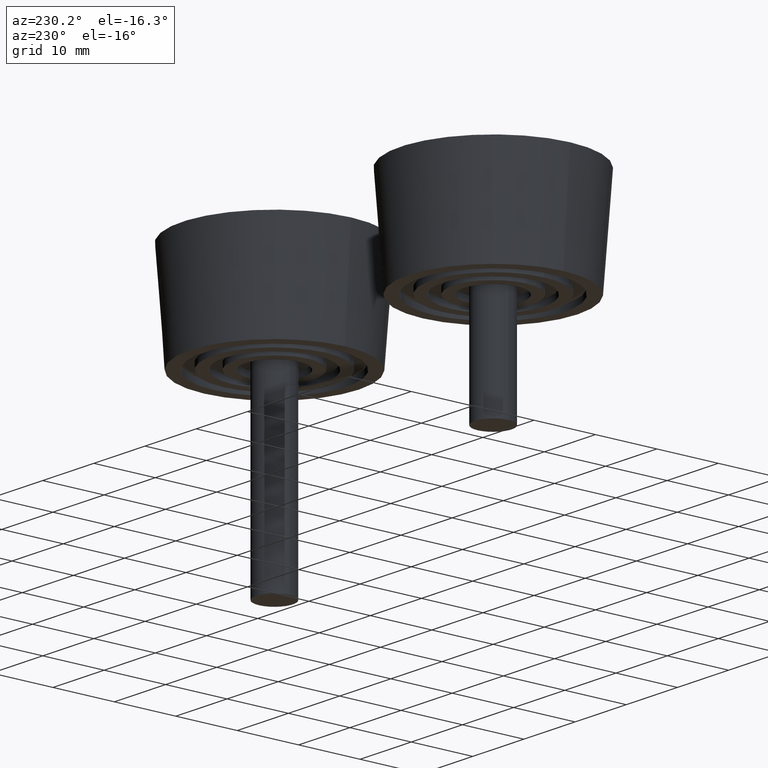
[diagram: clean part render]
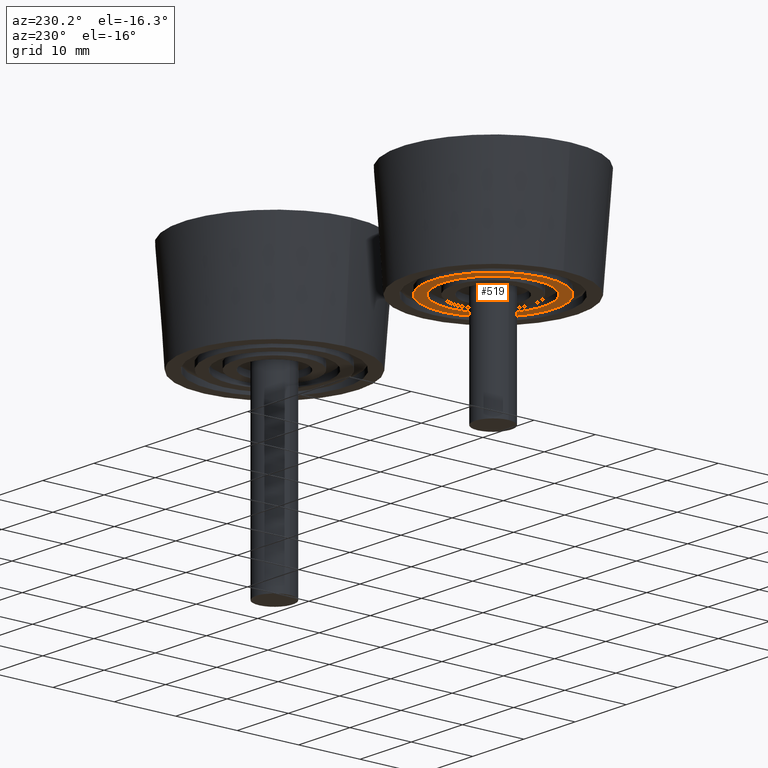
[diagram: same view with one face highlighted and labeled with its STEP entity id]
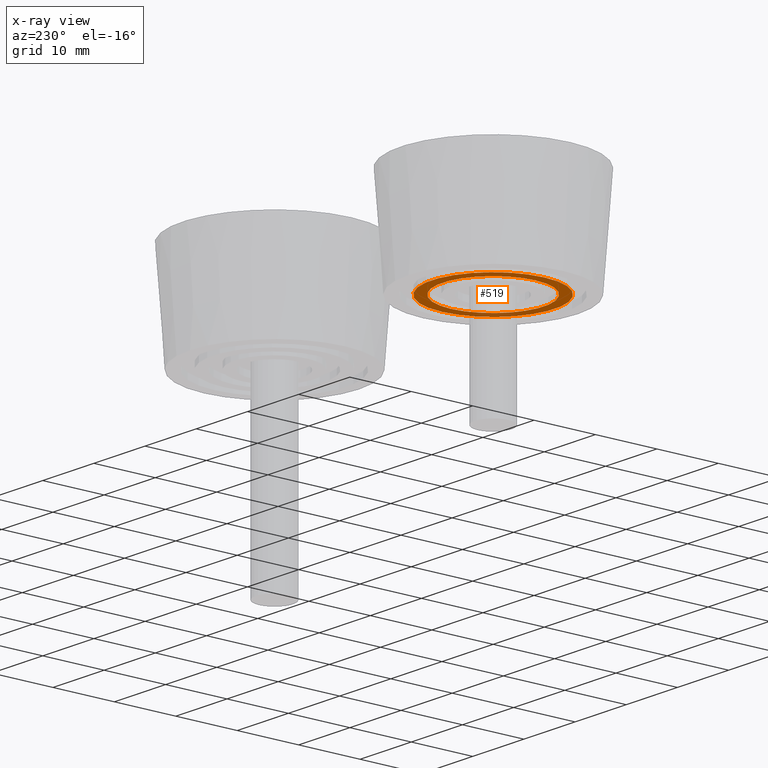
[diagram: x-ray of the same camera — body ghosted, the highlighted face saturated]
A machine part, auxiliary view. The second image highlights one B-rep face of the part: STEP entity #519.
The next image is the same camera in x-ray: the body ghosted, the highlighted face saturated — about 10% of this face is hidden behind the body in this view.
In plain terms, the highlighted planar face has unit normal (-0, -0, 1).
Its self-contained STEP definition (entity closure, byte-faithful):
#33=PLANE('',#584);
#64=FACE_BOUND('',#171,.T.);
#111=FACE_OUTER_BOUND('',#170,.T.);
#170=EDGE_LOOP('',(#410));
#171=EDGE_LOOP('',(#411));
#250=CIRCLE('',#568,10.);
#256=CIRCLE('',#578,8.25);
#298=VERTEX_POINT('',#880);
#304=VERTEX_POINT('',#896);
#346=EDGE_CURVE('',#298,#298,#250,.T.);
#352=EDGE_CURVE('',#304,#304,#256,.T.);
#410=ORIENTED_EDGE('',*,*,#346,.T.);
#411=ORIENTED_EDGE('',*,*,#352,.T.);
#519=ADVANCED_FACE('',(#111,#64),#33,.F.);
#568=AXIS2_PLACEMENT_3D('',#881,#678,#679);
#578=AXIS2_PLACEMENT_3D('',#897,#698,#699);
#584=AXIS2_PLACEMENT_3D('',#905,#710,#711);
#678=DIRECTION('center_axis',(0.,0.,-1.));
#679=DIRECTION('ref_axis',(1.,0.,0.));
#698=DIRECTION('center_axis',(0.,0.,1.));
#699=DIRECTION('ref_axis',(1.,0.,0.));
#710=DIRECTION('center_axis',(0.,0.,1.));
#711=DIRECTION('ref_axis',(1.,0.,0.));
#880=CARTESIAN_POINT('',(-10.,1.22464679914735E-15,0.));
#881=CARTESIAN_POINT('Origin',(0.,0.,0.));
#896=CARTESIAN_POINT('',(-8.25,1.01033360929657E-15,0.));
#897=CARTESIAN_POINT('Origin',(0.,0.,0.));
#905=CARTESIAN_POINT('Origin',(0.,0.,0.));